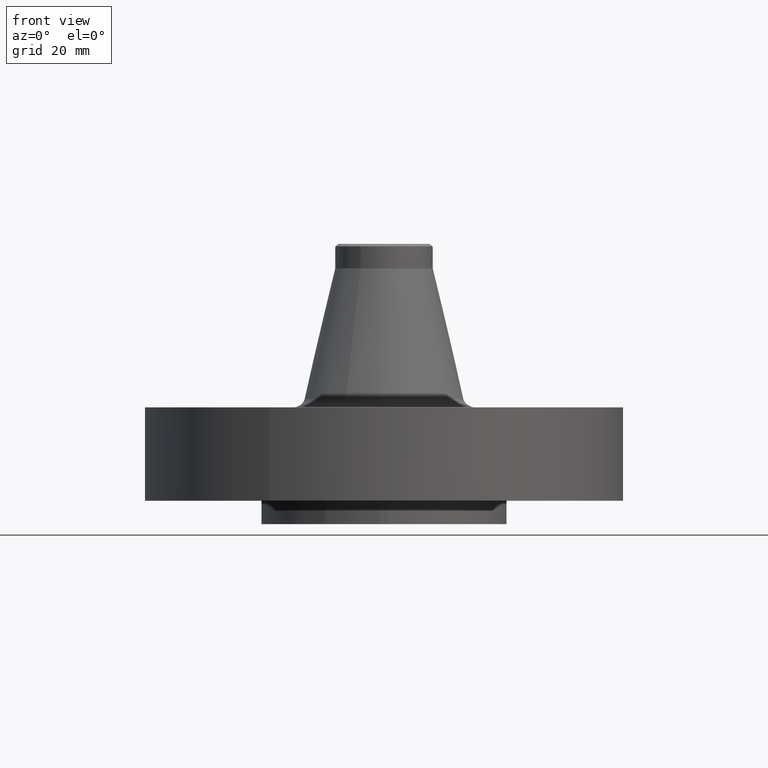
[diagram: clean part render]
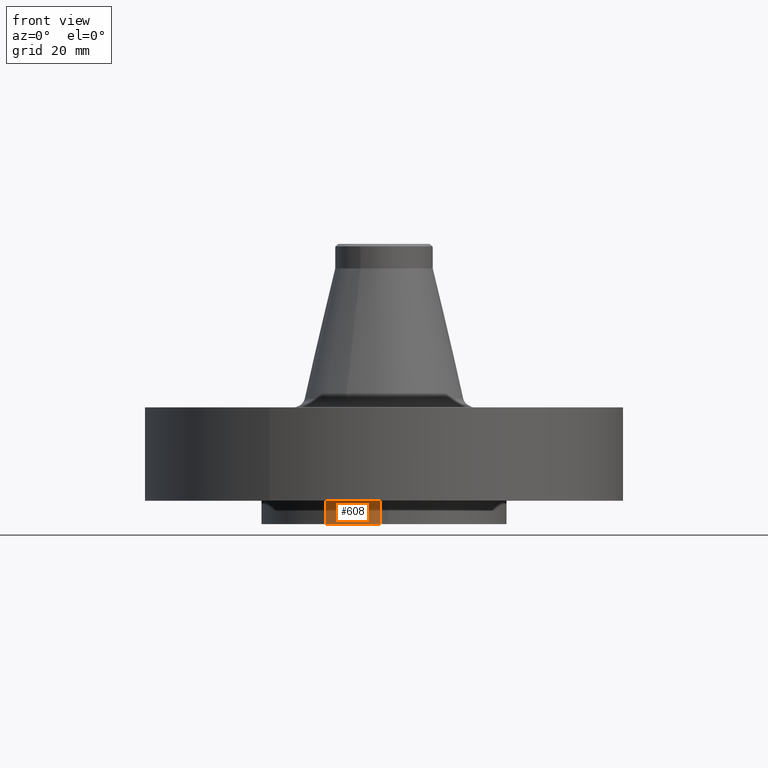
[diagram: same view with one face highlighted and labeled with its STEP entity id]
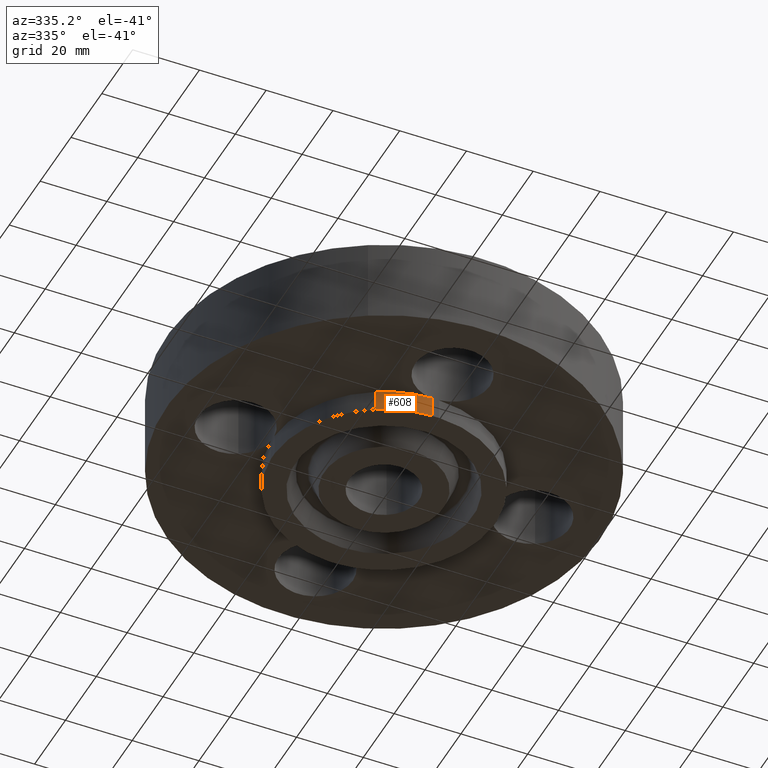
[diagram: same view with one face highlighted and labeled with its STEP entity id]
A machine part, front view. The second image highlights one B-rep face of the part: STEP entity #608.
A second angle (auxiliary view) of the same face is appended — the face is thin or edge-on in the first view.
In plain terms, the highlighted cylindrical surface (partial cylindrical patch) has radius 33.3375 mm, axis along (0, 0, -1).
Its self-contained STEP definition (entity closure, byte-faithful):
#127=AXIS2_PLACEMENT_3D('Cylinder Axis2P3D',#124,#125,#126) ;
#585=AXIS2_PLACEMENT_3D('Circle Axis2P3D',#583,#584,$) ;
#592=AXIS2_PLACEMENT_3D('Circle Axis2P3D',#590,#591,$) ;
#124=CARTESIAN_POINT('Axis2P3D Location',(0.,0.,1.25000000001)) ;
#491=CARTESIAN_POINT('Vertex',(-0.629246019421,-1.15182711249,-0.250000000001)) ;
#496=CARTESIAN_POINT('Line Origine',(-0.629246019421,-1.15182711249,-0.125000000001)) ;
#500=CARTESIAN_POINT('Vertex',(-0.629246019421,-1.15182711249,0.)) ;
#583=CARTESIAN_POINT('Axis2P3D Location',(0.,0.,0.)) ;
#587=CARTESIAN_POINT('Vertex',(-0.0405576089,-1.31187321429,0.)) ;
#590=CARTESIAN_POINT('Axis2P3D Location',(0.,0.,-0.250000000001)) ;
#594=CARTESIAN_POINT('Vertex',(-0.0405576089,-1.31187321429,-0.250000000001)) ;
#597=CARTESIAN_POINT('Line Origine',(-0.0405576089,-1.31187321429,-0.125000000001)) ;
#125=DIRECTION('Axis2P3D Direction',(0.,0.,-0.0393700787402)) ;
#126=DIRECTION('Axis2P3D XDirection',(0.0188750212049,0.0345504945626,0.)) ;
#497=DIRECTION('Vector Direction',(0.,0.,-0.0393700787402)) ;
#584=DIRECTION('Axis2P3D Direction',(0.,0.,-0.0393700787402)) ;
#591=DIRECTION('Axis2P3D Direction',(0.,0.,-0.0393700787402)) ;
#598=DIRECTION('Vector Direction',(0.,0.,-0.0393700787402)) ;
#498=VECTOR('Line Direction',#497,0.0393700787402) ;
#599=VECTOR('Line Direction',#598,0.0393700787402) ;
#603=ORIENTED_EDGE('',*,*,#589,.T.) ;
#604=ORIENTED_EDGE('',*,*,#502,.F.) ;
#605=ORIENTED_EDGE('',*,*,#596,.F.) ;
#606=ORIENTED_EDGE('',*,*,#601,.F.) ;
#608=ADVANCED_FACE('PartBody',(#607),#128,.T.) ;
#586=CIRCLE('generated circle',#585,1.31250000001) ;
#593=CIRCLE('generated circle',#592,1.31250000001) ;
#128=CYLINDRICAL_SURFACE('generated cylinder',#127,1.31250000001) ;
#502=EDGE_CURVE('',#492,#501,#499,.F.) ;
#589=EDGE_CURVE('',#588,#501,#586,.T.) ;
#596=EDGE_CURVE('',#595,#492,#593,.T.) ;
#601=EDGE_CURVE('',#588,#595,#600,.T.) ;
#602=EDGE_LOOP('',(#603,#604,#605,#606)) ;
#607=FACE_OUTER_BOUND('',#602,.T.) ;
#499=LINE('Line',#496,#498) ;
#600=LINE('Line',#597,#599) ;
#492=VERTEX_POINT('',#491) ;
#501=VERTEX_POINT('',#500) ;
#588=VERTEX_POINT('',#587) ;
#595=VERTEX_POINT('',#594) ;